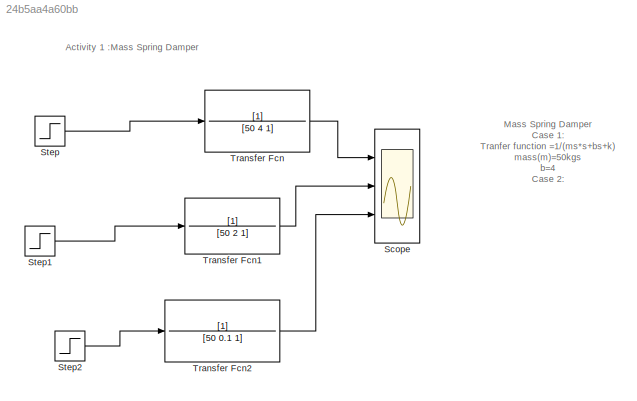
MODEL slx_24b5aa4a60bb
KIND model
CONFIG AbsTol = auto
CONFIG EnableMultiTasking = off
CONFIG FixedStep = auto
CONFIG MaxStep = auto
CONFIG MinStep = auto
CONFIG RelTol = 1e-3
CONFIG SampleTimeConstraint = Unconstrained
CONFIG SolverName = VariableStepAuto
CONFIG StartTime = 0.0
CONFIG StopTime = 10.0
BLOCK [Scope] Scope
  Floating = off
  NumInputPorts = 3
  Ports = [3]
  ScopeSpecificationString = Simulink.scopes.TimeScopeBlockCfg('CurrentConfiguration', extmgr.ConfigurationSet(extmgr.Configuration('Core','General UI',true),extmgr.Configuration('Core','Source UI',true),extmgr.Configuration('Sources','WiredSimulink',true),extmgr.Configuration('Visuals','Time Domain',true,'SerializedDisplays',{struct('MinYLimReal','-0.08779','MaxYLimReal','0.79007','YLabelReal','','MinYLimMag','0.00000','MaxY...<+1320ch>
BLOCK [Step] Step
  SampleTime = 0
BLOCK [Step] Step1
  SampleTime = 0
BLOCK [Step] Step2
  SampleTime = 0
BLOCK [TransferFcn] Transfer Fcn
  Denominator = [50 4 1]
BLOCK [TransferFcn] Transfer Fcn1
  Denominator = [50 2 1]
BLOCK [TransferFcn] Transfer Fcn2
  Denominator = [50 0.1 1]
ANNOTATION (root): Activity 1 :Mass Spring Damper
ANNOTATION (root): Mass Spring Damper Case 1: Tranfer function =1/(ms*s+bs+k) mass(m)=50kgs b=4 Case 2: Tranfer function =1/(ms*s+bs+k) mass(m)=50kgs b=2 Case 3: Tranfer function =1/(ms*s+bs+k) mass(m)=50kgs b=0.1s
LINE Step1:1 -> Transfer Fcn1:1
LINE Step2:1 -> Transfer Fcn2:1
LINE Step:1 -> Transfer Fcn:1
LINE Transfer Fcn1:1 -> Scope:2
LINE Transfer Fcn2:1 -> Scope:3
LINE Transfer Fcn:1 -> Scope:1
